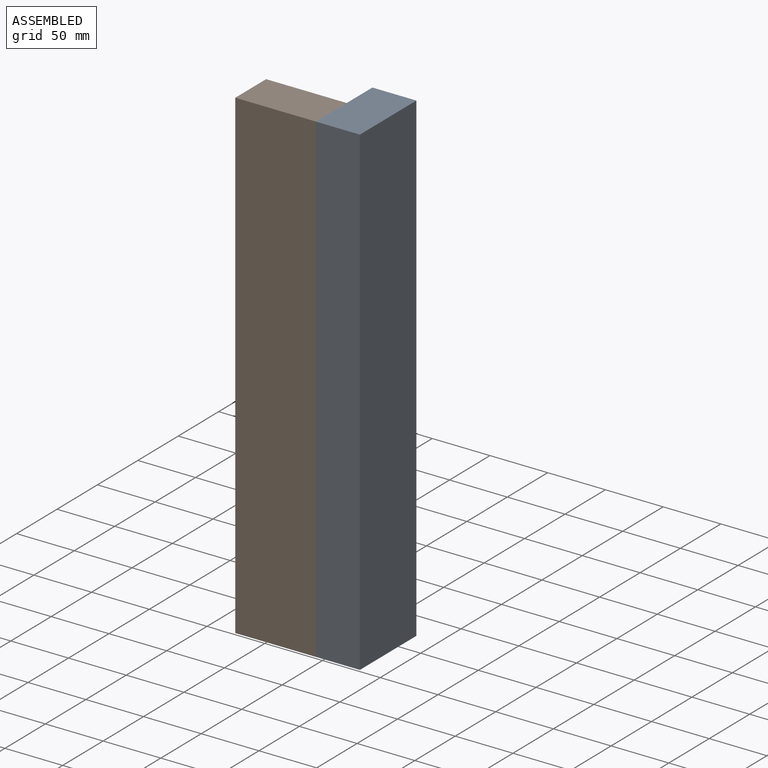
[diagram: assembled view]
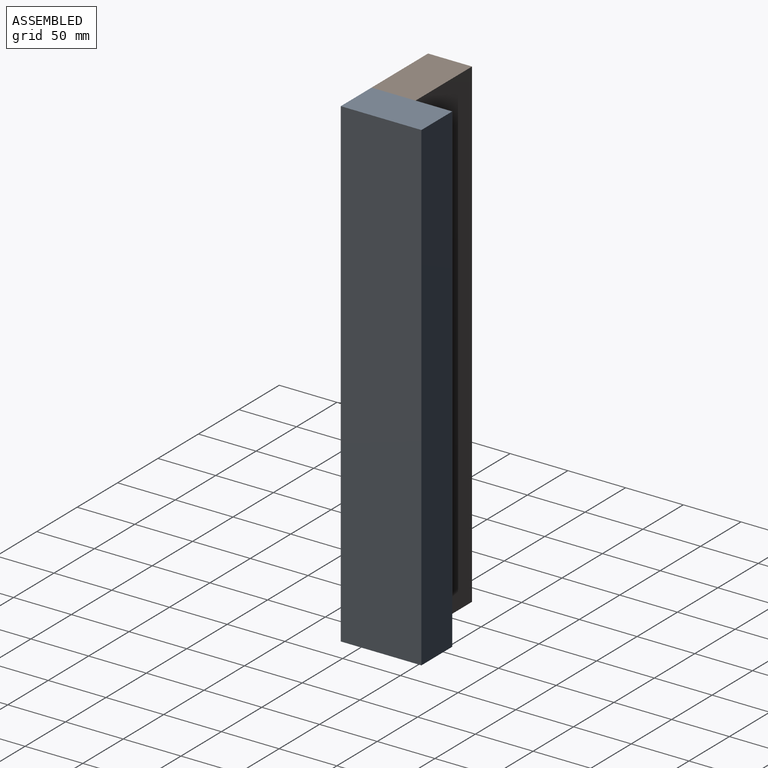
[diagram: assembled view, second angle]
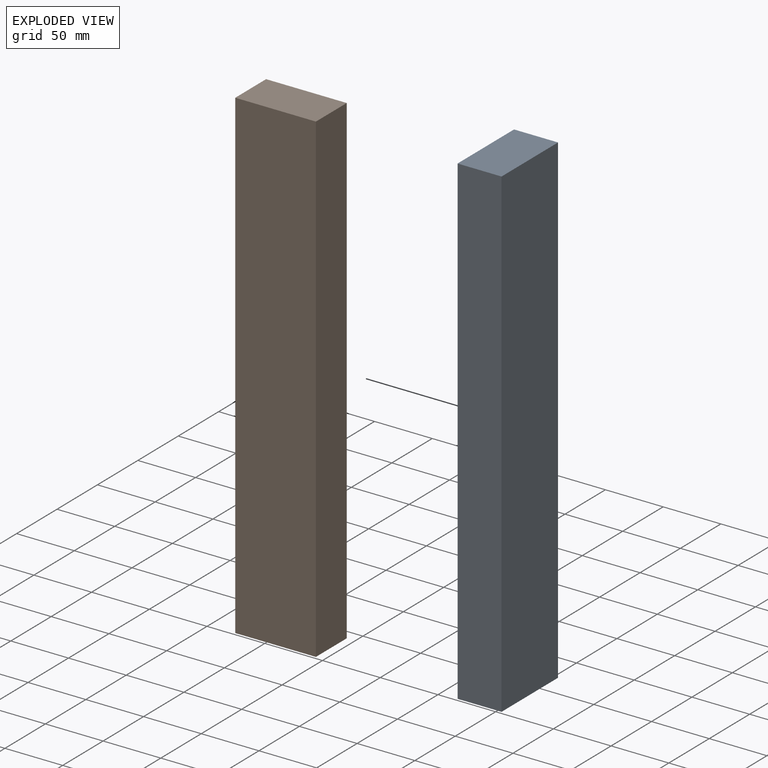
[diagram: exploded view]
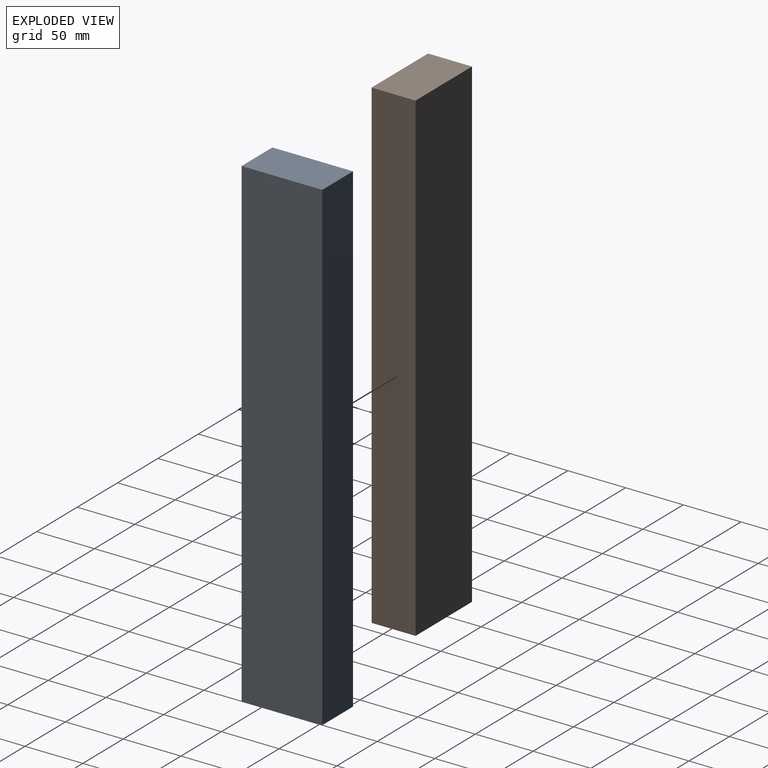
[diagram: exploded view, second angle]
ASSEMBLY  parts=2 mates=2
PART A: 6 faces, bbox 69.9x38.1x419.1 mm
  f0: plane 419.1x38.1mm, normal (-1,0,0), area 15967.7mm2, adj f1,f3,f4,f5
  f1: plane 69.85x38.1mm, normal (0,0,-1), area 2661.3mm2, adj f0,f2,f4,f5
  f2: plane 419.1x38.1mm, normal (1,0,0), area 15967.7mm2, adj f1,f3,f4,f5
  f3: plane 69.85x38.1mm, normal (0,0,1), area 2661.3mm2, adj f0,f2,f4,f5
  f4: plane 419.1x69.85mm, normal (0,-1,0), area 29274.1mm2, adj f0,f1,f2,f3
  f5: plane 419.1x69.85mm, normal (0,1,0), area 29274.1mm2, adj f0,f1,f2,f3
PART B: same geometry as A
PLACE A rot(axis=(0,0,1),90deg) t=(0.84,40.7,-123.56)mm
PLACE B t=(-69.01,78.8,-123.56)mm
MATE fastened B.f2 <-> A.f5  axis (1,0,0) through (0.84,40.7,295.54)mm
MATE planar B.f2 <-> A.f5  axis (1,0,0) through (0.84,40.7,295.54)mm
